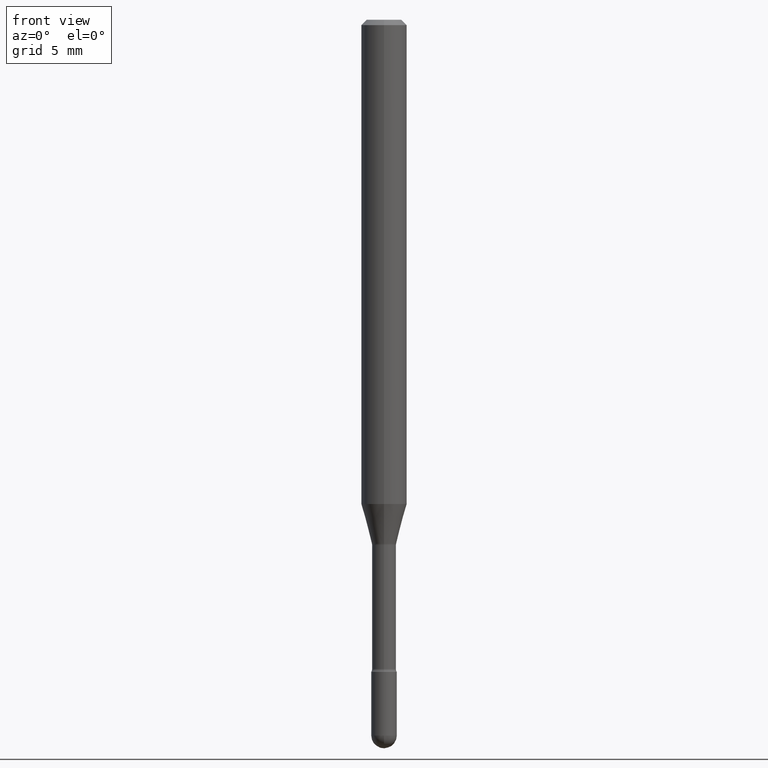
[diagram: clean part render]
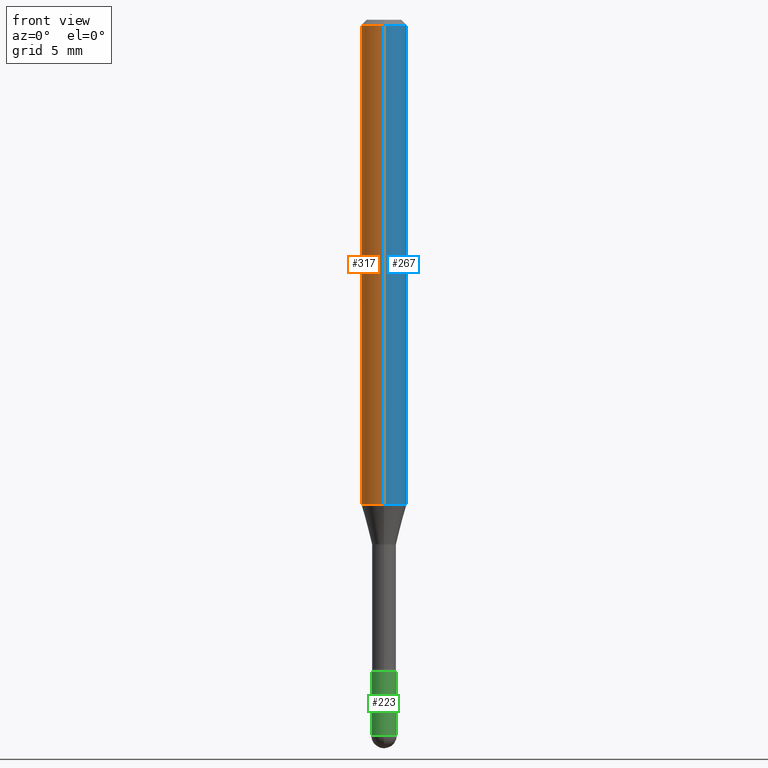
[diagram: same view with three faces highlighted in distinct colors, each labeled with its STEP entity id]
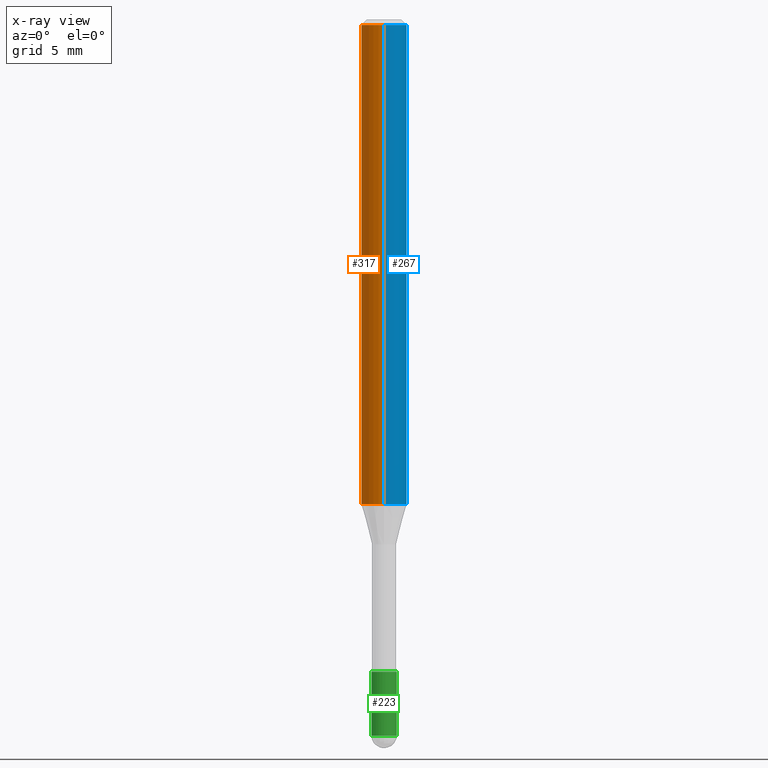
[diagram: x-ray of the same camera — body ghosted, the three highlighted faces saturated]
A machine part, front view with three faces highlighted in distinct colors.
The next image is the same camera in x-ray (body ghosted, the three faces saturated) — at least one of them is partly hidden behind the body in this view.
Their STEP definitions:

[orange] entity #317 — the highlighted cylindrical surface (edge-blend (fillet) strip) has radius 1.5875 mm, axis along (-0, 0, 1).
#18 = CARTESIAN_POINT ( 'NONE',  ( 4.440892098500948609E-16, 0.06249999999999532319, -1.329531296095961768 ) ) ;
#19 = VERTEX_POINT ( 'NONE', #350 ) ;
#67 = EDGE_LOOP ( 'NONE', ( #154, #325, #487, #442 ) ) ;
#71 = CARTESIAN_POINT ( 'NONE',  ( 3.668225283367237083E-31, -5.237190396912186618E-17, -0.01500000000000008271 ) ) ;
#74 = LINE ( 'NONE', #240, #447 ) ;
#94 = AXIS2_PLACEMENT_3D ( 'NONE', #566, #211, #131 ) ;
#114 = FACE_OUTER_BOUND ( 'NONE', #67, .T. ) ;
#131 = DIRECTION ( 'NONE',  ( -6.982962677686265922E-15, -1.000000000000000000, 4.370956789862821150E-15 ) ) ;
#140 = AXIS2_PLACEMENT_3D ( 'NONE', #510, #417, #235 ) ;
#154 = ORIENTED_EDGE ( 'NONE', *, *, #518, .F. ) ;
#161 = DIRECTION ( 'NONE',  ( -2.445483522244811550E-29, 3.491460264608105036E-15, 1.000000000000000000 ) ) ;
#171 = DIRECTION ( 'NONE',  ( -2.445483522244811830E-29, 3.491460264608105430E-15, 1.000000000000000000 ) ) ;
#173 = LINE ( 'NONE', #246, #455 ) ;
#183 = VERTEX_POINT ( 'NONE', #18 ) ;
#201 = DIRECTION ( 'NONE',  ( -6.982962677686265922E-15, -1.000000000000000000, 3.483106191921935554E-15 ) ) ;
#203 = CARTESIAN_POINT ( 'NONE',  ( 4.440892098500952553E-16, 0.06249999999999993755, -0.01500000000000030129 ) ) ;
#211 = DIRECTION ( 'NONE',  ( -2.445483522244811550E-29, 3.491460264608105036E-15, 1.000000000000000000 ) ) ;
#235 = DIRECTION ( 'NONE',  ( -6.982962677686265922E-15, -1.000000000000000000, 3.491460264608105036E-15 ) ) ;
#240 = CARTESIAN_POINT ( 'NONE',  ( -4.364351673553916201E-16, -0.06250000000000000000, 6.962896654292526280E-16 ) ) ;
#246 = CARTESIAN_POINT ( 'NONE',  ( 4.440892098500625669E-16, 0.06250000000000000000, 2.598571323532394985E-16 ) ) ;
#263 = AXIS2_PLACEMENT_3D ( 'NONE', #71, #161, #201 ) ;
#285 = VERTEX_POINT ( 'NONE', #444 ) ;
#286 = DIRECTION ( 'NONE',  ( -2.445483522244811830E-29, 3.491460264608105430E-15, 1.000000000000000000 ) ) ;
#298 = CIRCLE ( 'NONE', #94, 0.06250000000000000000 ) ;
#306 = EDGE_CURVE ( 'NONE', #285, #19, #74, .T. ) ;
#309 = EDGE_CURVE ( 'NONE', #375, #19, #385, .T. ) ;
#317 = ADVANCED_FACE ( 'NONE', ( #114 ), #414, .T. ) ;
#325 = ORIENTED_EDGE ( 'NONE', *, *, #498, .T. ) ;
#350 = CARTESIAN_POINT ( 'NONE',  ( -4.364351673553912750E-16, -0.06250000000000005551, -0.01499999999999986587 ) ) ;
#375 = VERTEX_POINT ( 'NONE', #203 ) ;
#385 = CIRCLE ( 'NONE', #263, 0.06250000000000000000 ) ;
#414 = CYLINDRICAL_SURFACE ( 'NONE', #140, 0.06250000000000000000 ) ;
#417 = DIRECTION ( 'NONE',  ( -2.445483522244811550E-29, 3.491460264608105036E-15, 1.000000000000000000 ) ) ;
#442 = ORIENTED_EDGE ( 'NONE', *, *, #309, .F. ) ;
#444 = CARTESIAN_POINT ( 'NONE',  ( -4.364351673553592768E-16, -0.06250000000000467681, -1.329531296095961101 ) ) ;
#447 = VECTOR ( 'NONE', #286, 39.37007874015748143 ) ;
#455 = VECTOR ( 'NONE', #171, 39.37007874015748143 ) ;
#487 = ORIENTED_EDGE ( 'NONE', *, *, #306, .T. ) ;
#498 = EDGE_CURVE ( 'NONE', #183, #285, #298, .T. ) ;
#510 = CARTESIAN_POINT ( 'NONE',  ( -1.169113584055446105E-44, 1.669184350826100908E-30, 4.780733988912460139E-16 ) ) ;
#518 = EDGE_CURVE ( 'NONE', #183, #375, #173, .T. ) ;
#566 = CARTESIAN_POINT ( 'NONE',  ( 3.251346876911460961E-29, -4.642005690871962526E-15, -1.329531296095961546 ) ) ;

[blue] entity #267 — the highlighted cylindrical surface (edge-blend (fillet) strip) has radius 1.5875 mm, axis along (-0, 0, 1).
#11 = CARTESIAN_POINT ( 'NONE',  ( -1.169113584055446105E-44, 1.669184350826100908E-30, 4.780733988912460139E-16 ) ) ;
#18 = CARTESIAN_POINT ( 'NONE',  ( 4.440892098500948609E-16, 0.06249999999999532319, -1.329531296095961768 ) ) ;
#19 = VERTEX_POINT ( 'NONE', #350 ) ;
#21 = DIRECTION ( 'NONE',  ( -2.445483522244811550E-29, 3.491460264608105036E-15, 1.000000000000000000 ) ) ;
#39 = AXIS2_PLACEMENT_3D ( 'NONE', #11, #361, #318 ) ;
#51 = FACE_OUTER_BOUND ( 'NONE', #405, .T. ) ;
#74 = LINE ( 'NONE', #240, #447 ) ;
#160 = CIRCLE ( 'NONE', #411, 0.06250000000000000000 ) ;
#171 = DIRECTION ( 'NONE',  ( -2.445483522244811830E-29, 3.491460264608105430E-15, 1.000000000000000000 ) ) ;
#173 = LINE ( 'NONE', #246, #455 ) ;
#183 = VERTEX_POINT ( 'NONE', #18 ) ;
#196 = EDGE_CURVE ( 'NONE', #285, #183, #514, .T. ) ;
#203 = CARTESIAN_POINT ( 'NONE',  ( 4.440892098500952553E-16, 0.06249999999999993755, -0.01500000000000030129 ) ) ;
#230 = ORIENTED_EDGE ( 'NONE', *, *, #518, .T. ) ;
#240 = CARTESIAN_POINT ( 'NONE',  ( -4.364351673553916201E-16, -0.06250000000000000000, 6.962896654292526280E-16 ) ) ;
#246 = CARTESIAN_POINT ( 'NONE',  ( 4.440892098500625669E-16, 0.06250000000000000000, 2.598571323532394985E-16 ) ) ;
#265 = CARTESIAN_POINT ( 'NONE',  ( 3.251346876911460961E-29, -4.642005690871962526E-15, -1.329531296095961546 ) ) ;
#267 = ADVANCED_FACE ( 'NONE', ( #51 ), #398, .T. ) ;
#285 = VERTEX_POINT ( 'NONE', #444 ) ;
#286 = DIRECTION ( 'NONE',  ( -2.445483522244811830E-29, 3.491460264608105430E-15, 1.000000000000000000 ) ) ;
#306 = EDGE_CURVE ( 'NONE', #285, #19, #74, .T. ) ;
#318 = DIRECTION ( 'NONE',  ( -6.982962677686265922E-15, -1.000000000000000000, 3.491460264608105036E-15 ) ) ;
#334 = ORIENTED_EDGE ( 'NONE', *, *, #540, .F. ) ;
#350 = CARTESIAN_POINT ( 'NONE',  ( -4.364351673553912750E-16, -0.06250000000000005551, -0.01499999999999986587 ) ) ;
#358 = DIRECTION ( 'NONE',  ( -6.982962677686265922E-15, -1.000000000000000000, 4.370956789862821150E-15 ) ) ;
#361 = DIRECTION ( 'NONE',  ( -2.445483522244811550E-29, 3.491460264608105036E-15, 1.000000000000000000 ) ) ;
#375 = VERTEX_POINT ( 'NONE', #203 ) ;
#388 = CARTESIAN_POINT ( 'NONE',  ( 3.668225283367237083E-31, -5.237190396912186618E-17, -0.01500000000000008271 ) ) ;
#398 = CYLINDRICAL_SURFACE ( 'NONE', #39, 0.06250000000000000000 ) ;
#405 = EDGE_LOOP ( 'NONE', ( #416, #230, #334, #504 ) ) ;
#410 = AXIS2_PLACEMENT_3D ( 'NONE', #265, #21, #358 ) ;
#411 = AXIS2_PLACEMENT_3D ( 'NONE', #388, #423, #474 ) ;
#416 = ORIENTED_EDGE ( 'NONE', *, *, #196, .T. ) ;
#423 = DIRECTION ( 'NONE',  ( -2.445483522244811550E-29, 3.491460264608105036E-15, 1.000000000000000000 ) ) ;
#444 = CARTESIAN_POINT ( 'NONE',  ( -4.364351673553592768E-16, -0.06250000000000467681, -1.329531296095961101 ) ) ;
#447 = VECTOR ( 'NONE', #286, 39.37007874015748143 ) ;
#455 = VECTOR ( 'NONE', #171, 39.37007874015748143 ) ;
#474 = DIRECTION ( 'NONE',  ( -6.982962677686265922E-15, -1.000000000000000000, 3.483106191921935554E-15 ) ) ;
#504 = ORIENTED_EDGE ( 'NONE', *, *, #306, .F. ) ;
#514 = CIRCLE ( 'NONE', #410, 0.06250000000000000000 ) ;
#518 = EDGE_CURVE ( 'NONE', #183, #375, #173, .T. ) ;
#540 = EDGE_CURVE ( 'NONE', #19, #375, #160, .T. ) ;

[green] entity #223 — the highlighted cylindrical surface (edge-blend (fillet) strip) has radius 0.889 mm, axis along (-0, 0, 1).
#23 = LINE ( 'NONE', #56, #236 ) ;
#25 = CIRCLE ( 'NONE', #121, 0.03500000000000000333 ) ;
#38 = CARTESIAN_POINT ( 'NONE',  ( 4.377389163071394665E-29, -6.249751596529231267E-15, -1.790000000000000036 ) ) ;
#41 = DIRECTION ( 'NONE',  ( -2.445468806185136597E-29, 3.491481338843145583E-15, 1.000000000000000000 ) ) ;
#47 = CARTESIAN_POINT ( 'NONE',  ( -0.03500000000000000333, -6.306566256161970939E-15, -1.964999999999999858 ) ) ;
#56 = CARTESIAN_POINT ( 'NONE',  ( 0.03500000000000000333, -2.444036937190193250E-16, 1.706661871528577808E-30 ) ) ;
#89 = CARTESIAN_POINT ( 'NONE',  ( 0.03500000000000000333, -6.494155290248250444E-15, -1.790000000000000036 ) ) ;
#100 = ORIENTED_EDGE ( 'NONE', *, *, #170, .T. ) ;
#110 = LINE ( 'NONE', #163, #374 ) ;
#121 = AXIS2_PLACEMENT_3D ( 'NONE', #445, #432, #404 ) ;
#123 = DIRECTION ( 'NONE',  ( -2.445468806185136597E-29, 3.491481338843145583E-15, 1.000000000000000000 ) ) ;
#128 = CIRCLE ( 'NONE', #523, 0.03500000000000000333 ) ;
#135 = EDGE_CURVE ( 'NONE', #315, #446, #25, .T. ) ;
#146 = DIRECTION ( 'NONE',  ( -2.445468806185136597E-29, 3.491481338843145583E-15, 1.000000000000000000 ) ) ;
#152 = ORIENTED_EDGE ( 'NONE', *, *, #135, .T. ) ;
#163 = CARTESIAN_POINT ( 'NONE',  ( -0.03500000000000000333, 2.486899575160350887E-16, -1.721627281589217108E-30 ) ) ;
#170 = EDGE_CURVE ( 'NONE', #446, #544, #23, .T. ) ;
#179 = VERTEX_POINT ( 'NONE', #546 ) ;
#205 = DIRECTION ( 'NONE',  ( -2.445468806185136877E-29, 3.491481338843145188E-15, 1.000000000000000000 ) ) ;
#220 = CARTESIAN_POINT ( 'NONE',  ( 0.000000000000000000, 0.000000000000000000, 0.000000000000000000 ) ) ;
#223 = ADVANCED_FACE ( 'NONE', ( #261 ), #407, .T. ) ;
#228 = ORIENTED_EDGE ( 'NONE', *, *, #554, .F. ) ;
#229 = DIRECTION ( 'NONE',  ( 1.000000000000000000, -6.982962677686265922E-15, 4.876176775795936353E-29 ) ) ;
#236 = VECTOR ( 'NONE', #311, 39.37007874015748143 ) ;
#241 = CARTESIAN_POINT ( 'NONE',  ( -2.486899575159870668E-16, -0.03500000000000687284, -1.964999999999999858 ) ) ;
#242 = VERTEX_POINT ( 'NONE', #47 ) ;
#261 = FACE_OUTER_BOUND ( 'NONE', #308, .T. ) ;
#281 = AXIS2_PLACEMENT_3D ( 'NONE', #38, #41, #562 ) ;
#293 = DIRECTION ( 'NONE',  ( 1.000000000000000000, -6.982962677686276966E-15, 0.000000000000000000 ) ) ;
#308 = EDGE_LOOP ( 'NONE', ( #453, #324, #152, #100, #228 ) ) ;
#311 = DIRECTION ( 'NONE',  ( -2.445468806185136877E-29, 3.491481338843145188E-15, 1.000000000000000000 ) ) ;
#315 = VERTEX_POINT ( 'NONE', #241 ) ;
#324 = ORIENTED_EDGE ( 'NONE', *, *, #516, .T. ) ;
#327 = CARTESIAN_POINT ( 'NONE',  ( 0.03500000000000000333, -6.799659907397025402E-15, -1.964999999999999858 ) ) ;
#374 = VECTOR ( 'NONE', #205, 39.37007874015748143 ) ;
#390 = CARTESIAN_POINT ( 'NONE',  ( 4.805346204153793345E-29, -6.860760830826780393E-15, -1.964999999999999858 ) ) ;
#393 = EDGE_CURVE ( 'NONE', #242, #179, #110, .T. ) ;
#404 = DIRECTION ( 'NONE',  ( 1.000000000000000000, -6.982962677686276966E-15, 0.000000000000000000 ) ) ;
#407 = CYLINDRICAL_SURFACE ( 'NONE', #545, 0.03500000000000000333 ) ;
#432 = DIRECTION ( 'NONE',  ( -2.445468806185136597E-29, 3.491481338843145583E-15, 1.000000000000000000 ) ) ;
#445 = CARTESIAN_POINT ( 'NONE',  ( 4.805346204153793345E-29, -6.860760830826780393E-15, -1.964999999999999858 ) ) ;
#446 = VERTEX_POINT ( 'NONE', #327 ) ;
#453 = ORIENTED_EDGE ( 'NONE', *, *, #393, .F. ) ;
#473 = CIRCLE ( 'NONE', #281, 0.03500000000000000333 ) ;
#516 = EDGE_CURVE ( 'NONE', #242, #315, #128, .T. ) ;
#523 = AXIS2_PLACEMENT_3D ( 'NONE', #390, #123, #293 ) ;
#544 = VERTEX_POINT ( 'NONE', #89 ) ;
#545 = AXIS2_PLACEMENT_3D ( 'NONE', #220, #146, #229 ) ;
#546 = CARTESIAN_POINT ( 'NONE',  ( -0.03500000000000000333, -6.306566256161970939E-15, -1.790000000000000036 ) ) ;
#554 = EDGE_CURVE ( 'NONE', #179, #544, #473, .T. ) ;
#562 = DIRECTION ( 'NONE',  ( 1.000000000000000000, -6.982962677686276966E-15, 0.000000000000000000 ) ) ;